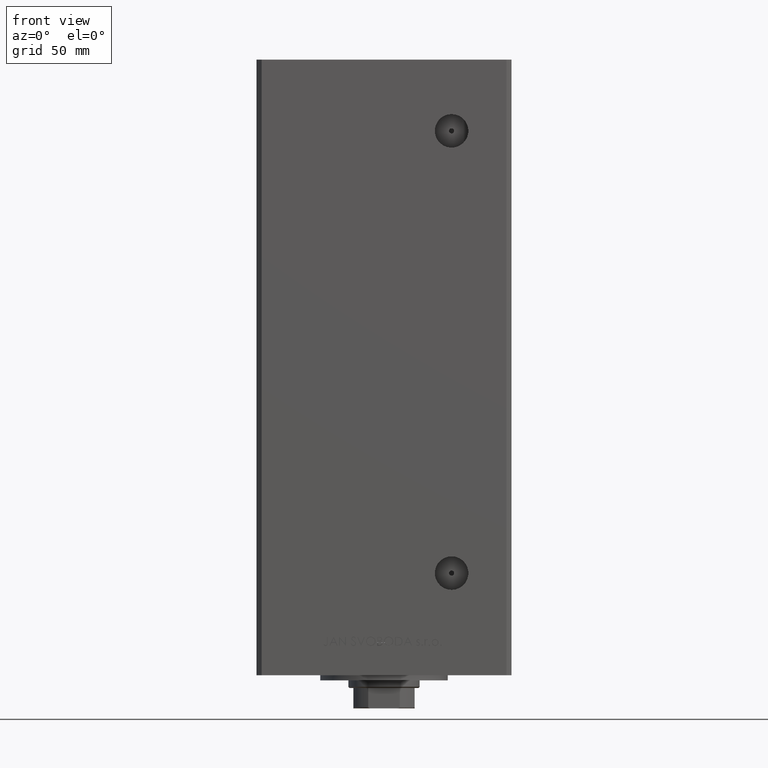
[diagram: clean part render]
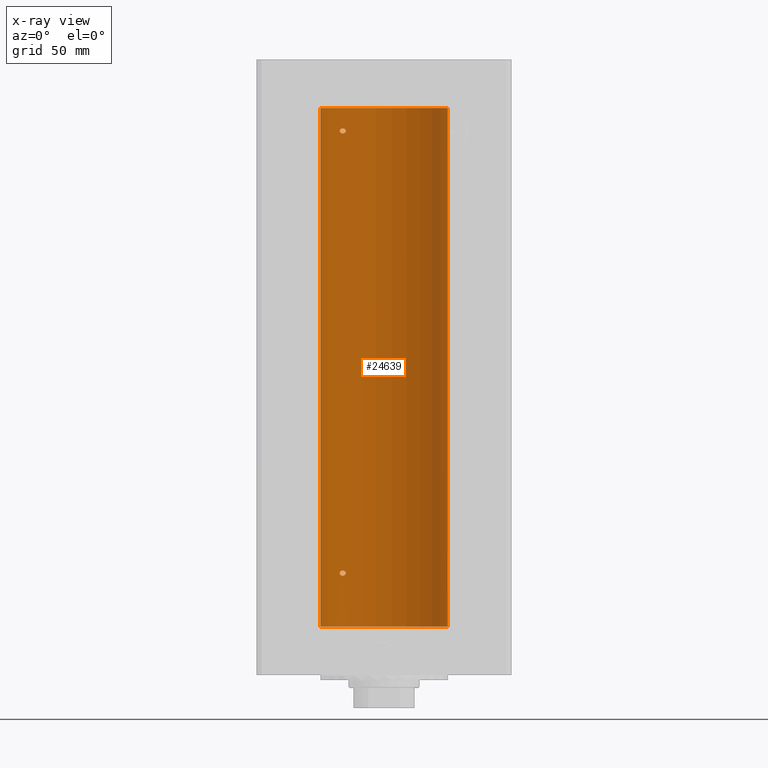
[diagram: x-ray — body ghosted, one internal face saturated and labeled with its STEP entity id]
A machine part, front view, then the same camera in x-ray: the body is ghosted and one INTERNAL B-rep face — a face not visible from any outside direction — is saturated and labeled: STEP entity #24639.
In plain terms, the highlighted cylindrical surface (partial cylindrical patch) has radius 25 mm, axis along (-0, -0, -1).
Its self-contained STEP definition (entity closure, byte-faithful):
#377 = VERTEX_POINT ( 'NONE', #28155 ) ;
#567 = AXIS2_PLACEMENT_3D ( 'NONE', #41699, #22975, #7771 ) ;
#2445 = CARTESIAN_POINT ( 'NONE',  ( -16.46913072925707056, 18.81168496547888580, 22.00577755881141329 ) ) ;
#2563 = DIRECTION ( 'NONE',  ( -0.000000000000000000, -0.000000000000000000, -1.000000000000000000 ) ) ;
#2887 = VERTEX_POINT ( 'NONE', #8282 ) ;
#3033 = CARTESIAN_POINT ( 'NONE',  ( -15.23538646979301170, 19.82157806413531631, 20.41199989528276149 ) ) ;
#3153 = VERTEX_POINT ( 'NONE', #31748 ) ;
#3669 = CYLINDRICAL_SURFACE ( 'NONE', #48257, 25.00000000000000000 ) ;
#4097 = DIRECTION ( 'NONE',  ( -0.000000000000000000, -0.000000000000000000, -1.000000000000000000 ) ) ;
#5053 = CARTESIAN_POINT ( 'NONE',  ( -16.08745393861406825, 19.13692152169247507, 21.99650150998692766 ) ) ;
#5390 = CARTESIAN_POINT ( 'NONE',  ( -16.46913072925702792, 18.81168496547891777, 195.5057775588114168 ) ) ;
#5541 = CARTESIAN_POINT ( 'NONE',  ( -15.00000000000002842, 19.99999999999998224, 20.99999999999998934 ) ) ;
#5899 = CARTESIAN_POINT ( 'NONE',  ( -15.70535969280552280, 19.45169171760802485, 195.3989607721124457 ) ) ;
#5909 = ORIENTED_EDGE ( 'NONE', *, *, #34294, .F. ) ;
#6149 = CARTESIAN_POINT ( 'NONE',  ( -14.99999999999999112, 20.00000000000000711, 194.4999999999999716 ) ) ;
#6151 = CARTESIAN_POINT ( 'NONE',  ( -16.83415218046510731, 18.48332662461726983, 193.6343172662811583 ) ) ;
#6402 = CARTESIAN_POINT ( 'NONE',  ( -17.34935157289806185, 17.99999999999981526, 194.5000000000000853 ) ) ;
#6494 = CARTESIAN_POINT ( 'NONE',  ( -15.01476641895664876, 19.98894406010705183, 21.16879456340133459 ) ) ;
#6594 = CARTESIAN_POINT ( 'NONE',  ( -15.34666241858321634, 19.73581294411414078, 20.31212246053760495 ) ) ;
#6839 = CARTESIAN_POINT ( 'NONE',  ( -17.05249165747622442, 18.28208333366434601, 20.29221922003641509 ) ) ;
#6851 = CARTESIAN_POINT ( 'NONE',  ( -25.00000000000000000, 0.000000000000000000, 203.5000000000000000 ) ) ;
#7350 = EDGE_CURVE ( 'NONE', #14432, #23812, #49692, .T. ) ;
#7691 = EDGE_CURVE ( 'NONE', #37068, #29634, #48168, .T. ) ;
#7771 = DIRECTION ( 'NONE',  ( 1.000000000000000000, 0.000000000000000000, 0.000000000000000000 ) ) ;
#8282 = CARTESIAN_POINT ( 'NONE',  ( -25.00000000000000000, 0.000000000000000000, 0.000000000000000000 ) ) ;
#8734 = ORIENTED_EDGE ( 'NONE', *, *, #44863, .T. ) ;
#8858 = CARTESIAN_POINT ( 'NONE',  ( -15.00000000000021316, 19.99999999999998934, 21.08403880362416061 ) ) ;
#9343 = CARTESIAN_POINT ( 'NONE',  ( -15.58230678163764260, 19.55030131031895380, 21.84373948670293331 ) ) ;
#9854 = DIRECTION ( 'NONE',  ( -1.000000000000000000, 0.000000000000000000, 0.000000000000000000 ) ) ;
#10456 = CARTESIAN_POINT ( 'NONE',  ( -17.05249165747618534, 18.28208333366438509, 193.7922192200364009 ) ) ;
#10640 = CARTESIAN_POINT ( 'NONE',  ( -15.06722189748651175, 19.94943357555936458, 20.67598032487887849 ) ) ;
#10774 = EDGE_LOOP ( 'NONE', ( #36221, #12690 ) ) ;
#10885 = CARTESIAN_POINT ( 'NONE',  ( -16.46844752485328911, 18.81003400474351039, 20.01154431903891862 ) ) ;
#12452 = ORIENTED_EDGE ( 'NONE', *, *, #28395, .T. ) ;
#12690 = ORIENTED_EDGE ( 'NONE', *, *, #45862, .F. ) ;
#13158 = CARTESIAN_POINT ( 'NONE',  ( -15.10490800566739011, 19.92096305044238491, 21.39629317404425279 ) ) ;
#13835 = EDGE_LOOP ( 'NONE', ( #32549, #12452, #8734, #22884 ) ) ;
#14014 = CARTESIAN_POINT ( 'NONE',  ( -15.10490800566735103, 19.92096305044241689, 194.8962931740442173 ) ) ;
#14432 = VERTEX_POINT ( 'NONE', #46746 ) ;
#14501 = CARTESIAN_POINT ( 'NONE',  ( -17.34935157289806185, 17.99999999999981526, 194.5000000000000853 ) ) ;
#14932 = CARTESIAN_POINT ( 'NONE',  ( -17.30269557861145202, 18.04515136187498570, 20.66604208175573376 ) ) ;
#15252 = CARTESIAN_POINT ( 'NONE',  ( 25.00000000000000000, 3.061616997868383043E-15, 203.5000000000000000 ) ) ;
#15338 = DIRECTION ( 'NONE',  ( -0.000000000000000000, -0.000000000000000000, -1.000000000000000000 ) ) ;
#15440 = CARTESIAN_POINT ( 'NONE',  ( -15.95808436639362782, 19.24489366819297942, 20.02426087884952821 ) ) ;
#15445 = AXIS2_PLACEMENT_3D ( 'NONE', #39373, #47990, #40387 ) ;
#16464 = CARTESIAN_POINT ( 'NONE',  ( -17.19010376497224968, 18.15221652163108601, 21.53567012356800703 ) ) ;
#17763 = VECTOR ( 'NONE', #2563, 1000.000000000000000 ) ;
#17808 = CARTESIAN_POINT ( 'NONE',  ( -16.72476285461317502, 18.58415905903083498, 195.4449447607956643 ) ) ;
#17810 = CARTESIAN_POINT ( 'NONE',  ( -16.71492528194901794, 18.59135325782701642, 193.5801415583420351 ) ) ;
#17899 = CARTESIAN_POINT ( 'NONE',  ( -17.34935157289810093, 17.99999999999978328, 21.00000000000008882 ) ) ;
#18146 = CARTESIAN_POINT ( 'NONE',  ( -16.72476285461321766, 18.58415905903079945, 21.94494476079569978 ) ) ;
#18493 = CARTESIAN_POINT ( 'NONE',  ( -15.10490010356607904, 19.92096840819818127, 20.60376667132250716 ) ) ;
#18552 = CARTESIAN_POINT ( 'NONE',  ( -15.01482636753733146, 19.98889854010115741, 194.3312026610076657 ) ) ;
#18738 = CARTESIAN_POINT ( 'NONE',  ( -16.34293146994555812, 18.91921593628406129, 19.99734259067261277 ) ) ;
#18994 = CARTESIAN_POINT ( 'NONE',  ( -17.15234217094410596, 18.18812579706693100, 20.39657304377494640 ) ) ;
#19141 = CARTESIAN_POINT ( 'NONE',  ( 0.000000000000000000, 0.000000000000000000, 203.5000000000000000 ) ) ;
#20267 = CARTESIAN_POINT ( 'NONE',  ( -15.06763582406801483, 19.94912143246361325, 21.32506993877174395 ) ) ;
#20310 = VECTOR ( 'NONE', #4097, 1000.000000000000000 ) ;
#21104 = CARTESIAN_POINT ( 'NONE',  ( -17.19010376497220705, 18.15221652163111088, 195.0356701235680248 ) ) ;
#21357 = CARTESIAN_POINT ( 'NONE',  ( -16.99843849356149050, 18.33190197607055794, 195.2468335145756555 ) ) ;
#21944 = CARTESIAN_POINT ( 'NONE',  ( -15.70535969280557254, 19.45169171760800708, 21.89896077211249192 ) ) ;
#22346 = CARTESIAN_POINT ( 'NONE',  ( -15.06722189748648866, 19.94943357555938590, 194.1759803248788785 ) ) ;
#22744 = CIRCLE ( 'NONE', #15445, 25.00000000000000000 ) ;
#22804 = LINE ( 'NONE', #6851, #17763 ) ;
#22884 = ORIENTED_EDGE ( 'NONE', *, *, #47983, .F. ) ;
#22975 = DIRECTION ( 'NONE',  ( -0.000000000000000000, 0.000000000000000000, 1.000000000000000000 ) ) ;
#23812 = VERTEX_POINT ( 'NONE', #46203 ) ;
#24060 = CARTESIAN_POINT ( 'NONE',  ( -16.99843849356152248, 18.33190197607051886, 21.74683351457564839 ) ) ;
#24561 = CARTESIAN_POINT ( 'NONE',  ( -17.05007833789895955, 18.28384926940283606, 21.70137399901213371 ) ) ;
#24639 = ADVANCED_FACE ( 'NONE', ( #38356, #30258, #45458 ), #3669, .F. ) ;
#24890 = CARTESIAN_POINT ( 'NONE',  ( -15.00000000000018474, 20.00000000000002487, 194.5840388036241109 ) ) ;
#25149 = CARTESIAN_POINT ( 'NONE',  ( -16.08757264251632080, 19.13682698743034649, 193.5034427658481775 ) ) ;
#25770 = B_SPLINE_CURVE_WITH_KNOTS ( 'NONE', 3,
 ( #6149, #24890, #48185, #32985, #14014, #41081, #29439, #32227, #5899, #48693, #40333, #5390, #17808, #21357, #28934, #47682, #21104, #44369, #32480, #6402 ),
 .UNSPECIFIED., .F., .F.,
 ( 4, 2, 2, 2, 2, 2, 2, 2, 2, 4 ),
 ( 0.004032696862986557759, 0.004284699222246954667, 0.004536701581507351574, 0.005040706300028082940, 0.005544711018548810835, 0.006048715737069539598, 0.007056725174110996257, 0.007308727533371349797, 0.007560729892631701601, 0.008064734611152412150 ),
 .UNSPECIFIED. ) ;
#26143 = CARTESIAN_POINT ( 'NONE',  ( -15.34666241858318259, 19.73581294411415854, 193.8121224605376085 ) ) ;
#26570 = CARTESIAN_POINT ( 'NONE',  ( -16.08757264251635277, 19.13682698743030386, 20.00344276584819525 ) ) ;
#27944 = EDGE_LOOP ( 'NONE', ( #5909, #39087 ) ) ;
#28076 = CARTESIAN_POINT ( 'NONE',  ( -17.34935157289810093, 17.99999999999978328, 21.00000000000008882 ) ) ;
#28155 = CARTESIAN_POINT ( 'NONE',  ( -14.99999999999999112, 20.00000000000000711, 194.4999999999999716 ) ) ;
#28347 = CARTESIAN_POINT ( 'NONE',  ( -17.30163983552693452, 18.04615713653364750, 21.33600747272777909 ) ) ;
#28395 = EDGE_CURVE ( 'NONE', #14432, #30964, #31394, .T. ) ;
#28934 = CARTESIAN_POINT ( 'NONE',  ( -17.05007833789892047, 18.28384926940287869, 195.2013739990121337 ) ) ;
#29439 = CARTESIAN_POINT ( 'NONE',  ( -15.34624284195505162, 19.73614442075940190, 195.1876185318512569 ) ) ;
#29529 = CARTESIAN_POINT ( 'NONE',  ( -17.34935157289749696, 17.99999999999998224, 21.17097369060632417 ) ) ;
#29634 = VERTEX_POINT ( 'NONE', #5541 ) ;
#29877 = CARTESIAN_POINT ( 'NONE',  ( -17.34935157289810093, 17.99999999999978328, 21.00000000000008882 ) ) ;
#29932 = CARTESIAN_POINT ( 'NONE',  ( -17.15234217094406333, 18.18812579706696653, 193.8965730437749357 ) ) ;
#30258 = FACE_BOUND ( 'NONE', #10774, .T. ) ;
#30964 = VERTEX_POINT ( 'NONE', #42156 ) ;
#31394 = CIRCLE ( 'NONE', #567, 25.00000000000000000 ) ;
#31748 = CARTESIAN_POINT ( 'NONE',  ( -17.34935157289806185, 17.99999999999981526, 194.5000000000000853 ) ) ;
#32136 = CARTESIAN_POINT ( 'NONE',  ( -15.23594348686703448, 19.82115246225713179, 21.58872193268582151 ) ) ;
#32227 = CARTESIAN_POINT ( 'NONE',  ( -15.58230678163759642, 19.55030131031898577, 195.3437394867029582 ) ) ;
#32480 = CARTESIAN_POINT ( 'NONE',  ( -17.34935157289746854, 18.00000000000001421, 194.6709736906063313 ) ) ;
#32549 = ORIENTED_EDGE ( 'NONE', *, *, #7350, .F. ) ;
#32563 = CARTESIAN_POINT ( 'NONE',  ( -15.58164749401203686, 19.55082150006403907, 20.15667807268518885 ) ) ;
#32985 = CARTESIAN_POINT ( 'NONE',  ( -15.06763582406798818, 19.94912143246363811, 194.8250699387717475 ) ) ;
#33237 = CARTESIAN_POINT ( 'NONE',  ( -15.70664578139651546, 19.45064696206092947, 193.6005795994920788 ) ) ;
#33915 = CARTESIAN_POINT ( 'NONE',  ( -15.00000000000022027, 20.00000000000000355, 20.91594745860243165 ) ) ;
#33974 = CARTESIAN_POINT ( 'NONE',  ( -15.00000000000018119, 20.00000000000001421, 194.4159474586023748 ) ) ;
#34161 = CARTESIAN_POINT ( 'NONE',  ( -15.00000000000002842, 19.99999999999998224, 20.99999999999998934 ) ) ;
#34294 = EDGE_CURVE ( 'NONE', #3153, #377, #39759, .T. ) ;
#35625 = EDGE_CURVE ( 'NONE', #377, #3153, #25770, .T. ) ;
#35925 = CARTESIAN_POINT ( 'NONE',  ( -15.34624284195510135, 19.73614442075936992, 21.68761853185130306 ) ) ;
#36221 = ORIENTED_EDGE ( 'NONE', *, *, #7691, .F. ) ;
#37028 = CARTESIAN_POINT ( 'NONE',  ( -16.34293146994552259, 18.91921593628409681, 193.4973425906725879 ) ) ;
#37068 = VERTEX_POINT ( 'NONE', #28076 ) ;
#37278 = CARTESIAN_POINT ( 'NONE',  ( -17.30269557861141294, 18.04515136187502478, 194.1660420817557053 ) ) ;
#37365 = CARTESIAN_POINT ( 'NONE',  ( -15.95796937689564565, 19.24499537862563869, 21.97577309965217651 ) ) ;
#37961 = CARTESIAN_POINT ( 'NONE',  ( -16.71492528194906768, 18.59135325782697734, 20.08014155834204217 ) ) ;
#38356 = FACE_OUTER_BOUND ( 'NONE', #13835, .T. ) ;
#39087 = ORIENTED_EDGE ( 'NONE', *, *, #35625, .F. ) ;
#39373 = CARTESIAN_POINT ( 'NONE',  ( 0.000000000000000000, 0.000000000000000000, 0.000000000000000000 ) ) ;
#39481 = CARTESIAN_POINT ( 'NONE',  ( -17.14593038898733113, 18.19399314418732061, 21.59594488319649130 ) ) ;
#39738 = CARTESIAN_POINT ( 'NONE',  ( -15.00000000000002842, 19.99999999999998224, 20.99999999999998934 ) ) ;
#39759 = B_SPLINE_CURVE_WITH_KNOTS ( 'NONE', 3,
 ( #14501, #44632, #37278, #29932, #10456, #6151, #17810, #45623, #37028, #25149, #45373, #33237, #40583, #26143, #48695, #41582, #22346, #18552, #33974, #49435 ),
 .UNSPECIFIED., .F., .F.,
 ( 4, 2, 2, 2, 2, 2, 2, 2, 2, 4 ),
 ( 2.254873622441466949E-16, 0.0005040871078735091300, 0.001008174215746792746, 0.001512261323620076470, 0.002016348431493359978, 0.002520435539366643485, 0.003024522647239927427, 0.003528609755113210501, 0.003780653309049884347, 0.004032696862986557759 ),
 .UNSPECIFIED. ) ;
#40333 = CARTESIAN_POINT ( 'NONE',  ( -16.08745393861402917, 19.13692152169251059, 195.4965015099868708 ) ) ;
#40387 = DIRECTION ( 'NONE',  ( 1.000000000000000000, 0.000000000000000000, 0.000000000000000000 ) ) ;
#40583 = CARTESIAN_POINT ( 'NONE',  ( -15.58164749401199956, 19.55082150006405328, 193.6566780726851391 ) ) ;
#40911 = B_SPLINE_CURVE_WITH_KNOTS ( 'NONE', 3,
 ( #39738, #8858, #6494, #20267, #13158, #32136, #35925, #9343, #21944, #37365, #5053, #2445, #18146, #24060, #24561, #39481, #16464, #28347, #29529, #17899 ),
 .UNSPECIFIED., .F., .F.,
 ( 4, 2, 2, 2, 2, 2, 2, 2, 2, 4 ),
 ( 0.004032696862986568168, 0.004284699222246932983, 0.004536701581507298665, 0.005040706300028030031, 0.005544711018548761396, 0.006048715737069493628, 0.007056725174110963297, 0.007308727533371326378, 0.007560729892631690326, 0.008064734611152429497 ),
 .UNSPECIFIED. ) ;
#41081 = CARTESIAN_POINT ( 'NONE',  ( -15.23594348686699185, 19.82115246225716021, 195.0887219326858713 ) ) ;
#41582 = CARTESIAN_POINT ( 'NONE',  ( -15.10490010356605595, 19.92096840819819903, 194.1037666713224610 ) ) ;
#41699 = CARTESIAN_POINT ( 'NONE',  ( 0.000000000000000000, 0.000000000000000000, 203.5000000000000000 ) ) ;
#42156 = CARTESIAN_POINT ( 'NONE',  ( -25.00000000000000000, 0.000000000000000000, 203.5000000000000000 ) ) ;
#44369 = CARTESIAN_POINT ( 'NONE',  ( -17.30163983552688833, 18.04615713653367948, 194.8360074727278004 ) ) ;
#44632 = CARTESIAN_POINT ( 'NONE',  ( -17.34935157289747210, 18.00000000000002132, 194.3289983604258566 ) ) ;
#44863 = EDGE_CURVE ( 'NONE', #30964, #2887, #22804, .T. ) ;
#45315 = CARTESIAN_POINT ( 'NONE',  ( -16.83415218046515349, 18.48332662461723785, 20.13431726628115115 ) ) ;
#45373 = CARTESIAN_POINT ( 'NONE',  ( -15.95808436639360117, 19.24489366819300784, 193.5242608788496170 ) ) ;
#45458 = FACE_BOUND ( 'NONE', #27944, .T. ) ;
#45561 = CARTESIAN_POINT ( 'NONE',  ( -17.34935157289749696, 17.99999999999998579, 20.82899836042580688 ) ) ;
#45623 = CARTESIAN_POINT ( 'NONE',  ( -16.46844752485324648, 18.81003400474354947, 193.5115443190388476 ) ) ;
#45862 = EDGE_CURVE ( 'NONE', #29634, #37068, #40911, .T. ) ;
#46203 = CARTESIAN_POINT ( 'NONE',  ( 25.00000000000000000, 3.061616997868383043E-15, 0.000000000000000000 ) ) ;
#46746 = CARTESIAN_POINT ( 'NONE',  ( 25.00000000000000000, 3.061616997868383043E-15, 203.5000000000000000 ) ) ;
#47682 = CARTESIAN_POINT ( 'NONE',  ( -17.14593038898727428, 18.19399314418736324, 195.0959448831964664 ) ) ;
#47983 = EDGE_CURVE ( 'NONE', #23812, #2887, #22744, .T. ) ;
#47990 = DIRECTION ( 'NONE',  ( -0.000000000000000000, 0.000000000000000000, 1.000000000000000000 ) ) ;
#48168 = B_SPLINE_CURVE_WITH_KNOTS ( 'NONE', 3,
 ( #29877, #45561, #14932, #18994, #6839, #45315, #37961, #10885, #18738, #26570, #15440, #49626, #32563, #6594, #3033, #18493, #10640, #49876, #33915, #34161 ),
 .UNSPECIFIED., .F., .F.,
 ( 4, 2, 2, 2, 2, 2, 2, 2, 2, 4 ),
 ( 2.011680962688586771E-16, 0.0005040871078734975291, 0.001008174215746794047, 0.001512261323620090565, 0.002016348431493386866, 0.002520435539366683384, 0.003024522647239979902, 0.003528609755113272951, 0.003780653309049920342, 0.004032696862986568168 ),
 .UNSPECIFIED. ) ;
#48185 = CARTESIAN_POINT ( 'NONE',  ( -15.01476641895662567, 19.98894406010707314, 194.6687945634012920 ) ) ;
#48257 = AXIS2_PLACEMENT_3D ( 'NONE', #19141, #15338, #9854 ) ;
#48693 = CARTESIAN_POINT ( 'NONE',  ( -15.95796937689560480, 19.24499537862567422, 195.4757730996522014 ) ) ;
#48695 = CARTESIAN_POINT ( 'NONE',  ( -15.23538646979298505, 19.82157806413532697, 193.9119998952827757 ) ) ;
#49435 = CARTESIAN_POINT ( 'NONE',  ( -14.99999999999999112, 20.00000000000000711, 194.4999999999999716 ) ) ;
#49626 = CARTESIAN_POINT ( 'NONE',  ( -15.70664578139654566, 19.45064696206090105, 20.10057959949211082 ) ) ;
#49692 = LINE ( 'NONE', #15252, #20310 ) ;
#49876 = CARTESIAN_POINT ( 'NONE',  ( -15.01482636753736166, 19.98889854010113254, 20.83120266100769769 ) ) ;